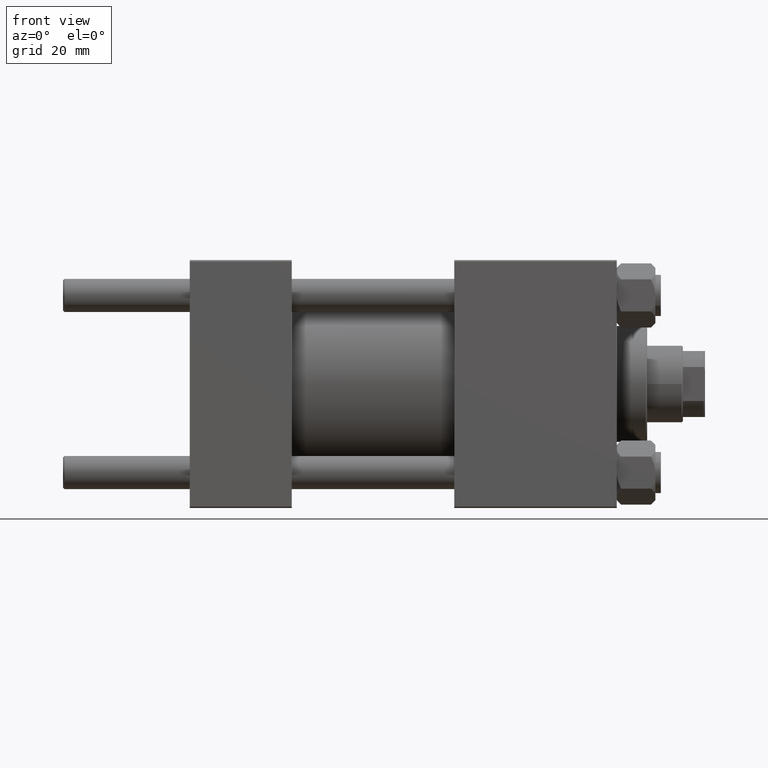
[diagram: clean part render]
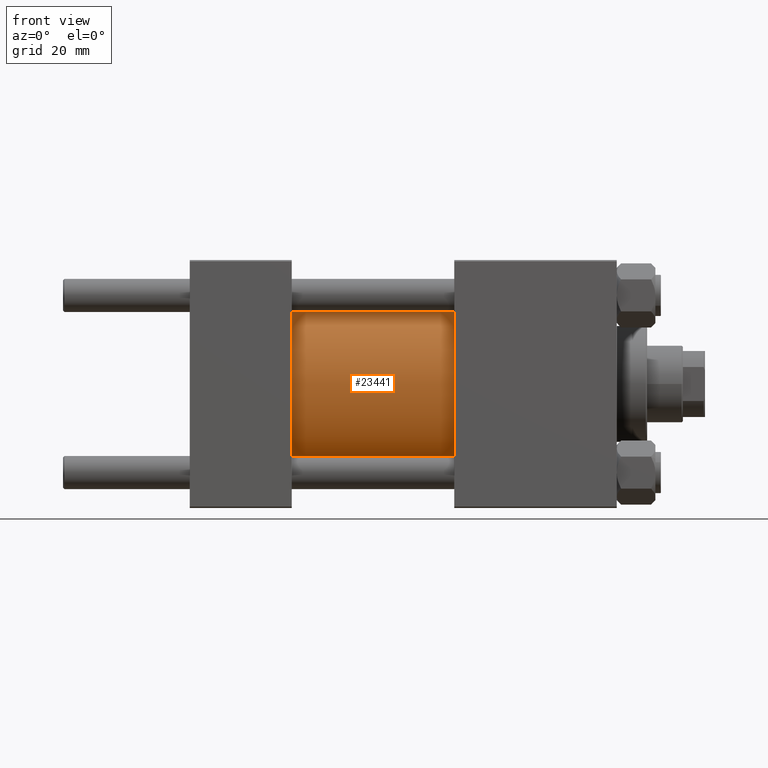
[diagram: same view with one face highlighted and labeled with its STEP entity id]
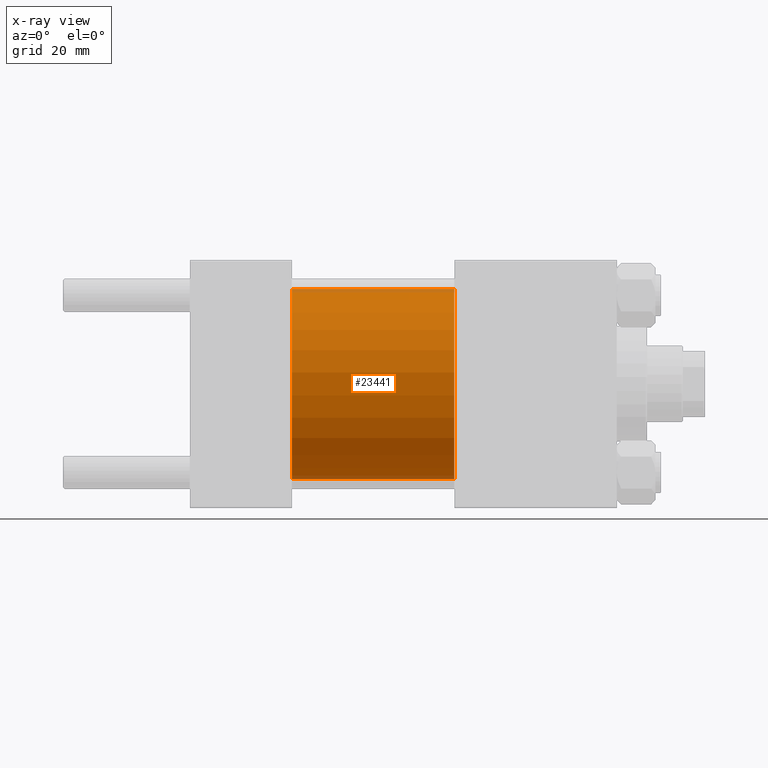
[diagram: x-ray of the same camera — body ghosted, the highlighted face saturated]
A machine part, front view. The second image highlights one B-rep face of the part: STEP entity #23441.
The next image is the same camera in x-ray: the body ghosted, the highlighted face saturated — about 4% of this face is hidden behind the body in this view.
In plain terms, the highlighted cylindrical surface (partial cylindrical patch) has radius 34.5 mm, axis along (-1, -0, -0).
Its self-contained STEP definition (entity closure, byte-faithful):
#1120 = DIRECTION ( 'NONE',  ( 1.000000000000000000, 0.000000000000000000, 0.000000000000000000 ) ) ;
#2348 = DIRECTION ( 'NONE',  ( 0.000000000000000000, 0.000000000000000000, 1.000000000000000000 ) ) ;
#3548 = EDGE_CURVE ( 'NONE', #46313, #11779, #30557, .T. ) ;
#3586 = EDGE_CURVE ( 'NONE', #29700, #46313, #18101, .T. ) ;
#4648 = CARTESIAN_POINT ( 'NONE',  ( 96.00000000000000000, 0.000000000000000000, 0.000000000000000000 ) ) ;
#9230 = CARTESIAN_POINT ( 'NONE',  ( 96.00000000000000000, 0.000000000000000000, 34.49999999999999289 ) ) ;
#11779 = VERTEX_POINT ( 'NONE', #28662 ) ;
#12943 = DIRECTION ( 'NONE',  ( 0.000000000000000000, 0.000000000000000000, -1.000000000000000000 ) ) ;
#14812 = CARTESIAN_POINT ( 'NONE',  ( 96.00000000000000000, 4.225031457058367344E-15, -34.49999999999999289 ) ) ;
#15061 = DIRECTION ( 'NONE',  ( -1.000000000000000000, -0.000000000000000000, -0.000000000000000000 ) ) ;
#18101 = LINE ( 'NONE', #29707, #49016 ) ;
#18881 = EDGE_CURVE ( 'NONE', #29700, #36066, #35919, .T. ) ;
#19096 = DIRECTION ( 'NONE',  ( 0.000000000000000000, 0.000000000000000000, 1.000000000000000000 ) ) ;
#20743 = CYLINDRICAL_SURFACE ( 'NONE', #31110, 34.49999999999999289 ) ;
#21493 = CARTESIAN_POINT ( 'NONE',  ( 96.00000000000000000, 0.000000000000000000, 0.000000000000000000 ) ) ;
#23042 = ORIENTED_EDGE ( 'NONE', *, *, #3586, .T. ) ;
#23441 = ADVANCED_FACE ( 'NONE', ( #36849 ), #20743, .T. ) ;
#27464 = VECTOR ( 'NONE', #15061, 1000.000000000000000 ) ;
#27676 = EDGE_LOOP ( 'NONE', ( #47880, #31258, #23042, #39484 ) ) ;
#28313 = DIRECTION ( 'NONE',  ( -1.000000000000000000, -0.000000000000000000, -0.000000000000000000 ) ) ;
#28662 = CARTESIAN_POINT ( 'NONE',  ( 37.00000000000000000, 4.225031457058367344E-15, -34.49999999999999289 ) ) ;
#29700 = VERTEX_POINT ( 'NONE', #9230 ) ;
#29707 = CARTESIAN_POINT ( 'NONE',  ( 96.00000000000000000, 0.000000000000000000, 34.49999999999999289 ) ) ;
#30208 = CARTESIAN_POINT ( 'NONE',  ( 37.00000000000000000, 0.000000000000000000, 0.000000000000000000 ) ) ;
#30557 = CIRCLE ( 'NONE', #49844, 34.49999999999999289 ) ;
#31110 = AXIS2_PLACEMENT_3D ( 'NONE', #21493, #28313, #2348 ) ;
#31258 = ORIENTED_EDGE ( 'NONE', *, *, #18881, .F. ) ;
#33437 = CARTESIAN_POINT ( 'NONE',  ( 37.00000000000000000, 0.000000000000000000, 34.49999999999999289 ) ) ;
#34594 = EDGE_CURVE ( 'NONE', #36066, #11779, #49329, .T. ) ;
#35919 = CIRCLE ( 'NONE', #39889, 34.49999999999999289 ) ;
#36066 = VERTEX_POINT ( 'NONE', #38126 ) ;
#36849 = FACE_OUTER_BOUND ( 'NONE', #27676, .T. ) ;
#38006 = DIRECTION ( 'NONE',  ( 1.000000000000000000, -0.000000000000000000, 0.000000000000000000 ) ) ;
#38126 = CARTESIAN_POINT ( 'NONE',  ( 96.00000000000000000, 4.225031457058367344E-15, -34.49999999999999289 ) ) ;
#39484 = ORIENTED_EDGE ( 'NONE', *, *, #3548, .T. ) ;
#39889 = AXIS2_PLACEMENT_3D ( 'NONE', #4648, #1120, #12943 ) ;
#46313 = VERTEX_POINT ( 'NONE', #33437 ) ;
#47880 = ORIENTED_EDGE ( 'NONE', *, *, #34594, .F. ) ;
#49016 = VECTOR ( 'NONE', #49342, 1000.000000000000000 ) ;
#49329 = LINE ( 'NONE', #14812, #27464 ) ;
#49342 = DIRECTION ( 'NONE',  ( -1.000000000000000000, -0.000000000000000000, -0.000000000000000000 ) ) ;
#49844 = AXIS2_PLACEMENT_3D ( 'NONE', #30208, #38006, #19096 ) ;